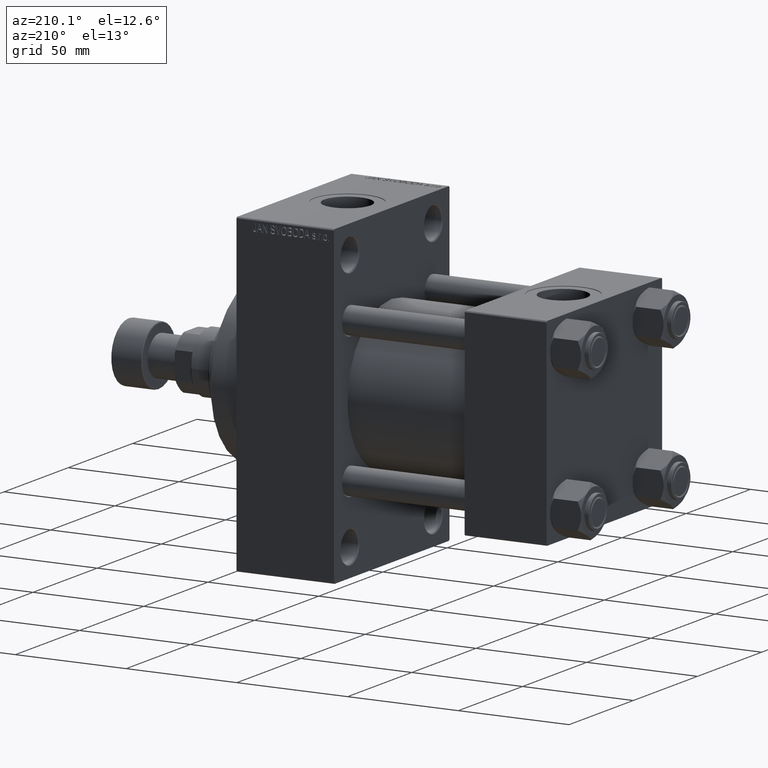
[diagram: clean part render]
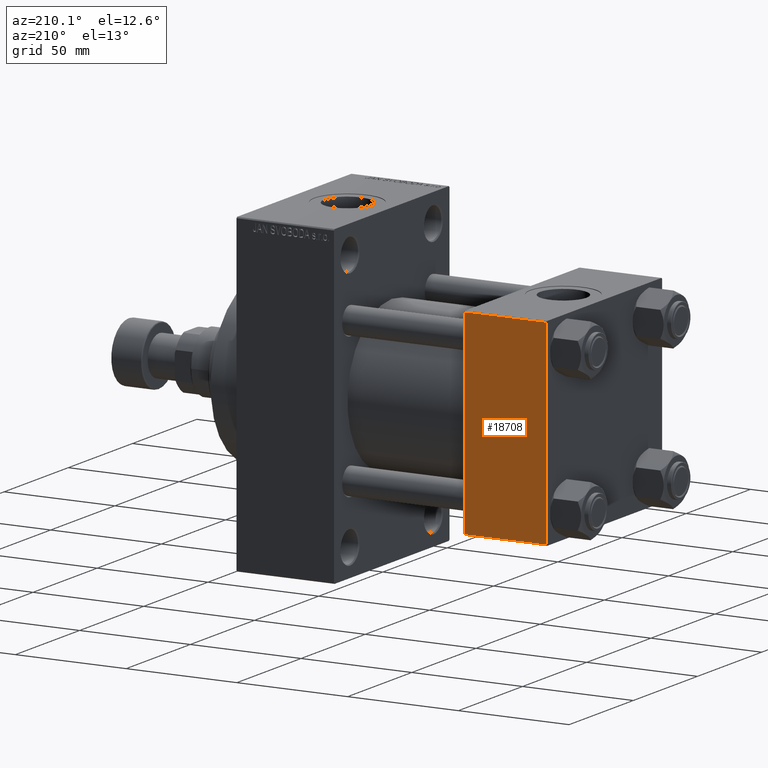
[diagram: same view with one face highlighted and labeled with its STEP entity id]
A machine part, auxiliary view. The second image highlights one B-rep face of the part: STEP entity #18708.
In plain terms, the highlighted planar face has unit normal (0, 1, 0).
Its self-contained STEP definition (entity closure, byte-faithful):
#611 = LINE ( 'NONE', #8302, #44023 ) ;
#662 = DIRECTION ( 'NONE',  ( -0.000000000000000000, 1.000000000000000000, 0.000000000000000000 ) ) ;
#1246 = CARTESIAN_POINT ( 'NONE',  ( 37.00000000000000000, 45.00000000000000000, -44.49999999999996447 ) ) ;
#2301 = CARTESIAN_POINT ( 'NONE',  ( 0.000000000000000000, 45.00000000000000000, -44.49999999999996447 ) ) ;
#4129 = ORIENTED_EDGE ( 'NONE', *, *, #23536, .T. ) ;
#5028 = VECTOR ( 'NONE', #43281, 1000.000000000000000 ) ;
#6236 = EDGE_CURVE ( 'NONE', #30316, #13992, #47371, .T. ) ;
#8302 = CARTESIAN_POINT ( 'NONE',  ( 37.00000000000000000, 45.00000000000000000, 44.49999999999999289 ) ) ;
#9556 = EDGE_CURVE ( 'NONE', #12150, #35496, #12733, .T. ) ;
#11334 = ORIENTED_EDGE ( 'NONE', *, *, #9556, .F. ) ;
#11511 = PLANE ( 'NONE',  #27009 ) ;
#11584 = CARTESIAN_POINT ( 'NONE',  ( 37.00000000000000000, 45.00000000000000000, 44.49999999999999289 ) ) ;
#12019 = DIRECTION ( 'NONE',  ( 0.000000000000000000, 0.000000000000000000, -1.000000000000000000 ) ) ;
#12150 = VERTEX_POINT ( 'NONE', #12479 ) ;
#12479 = CARTESIAN_POINT ( 'NONE',  ( 0.000000000000000000, 45.00000000000000000, 44.49999999999999289 ) ) ;
#12733 = LINE ( 'NONE', #42129, #35193 ) ;
#13992 = VERTEX_POINT ( 'NONE', #1246 ) ;
#18259 = FACE_OUTER_BOUND ( 'NONE', #20025, .T. ) ;
#18527 = LINE ( 'NONE', #25758, #23678 ) ;
#18708 = ADVANCED_FACE ( 'NONE', ( #18259 ), #11511, .T. ) ;
#20025 = EDGE_LOOP ( 'NONE', ( #24816, #4129, #11334, #28724 ) ) ;
#23536 = EDGE_CURVE ( 'NONE', #13992, #35496, #18527, .T. ) ;
#23678 = VECTOR ( 'NONE', #40711, 1000.000000000000000 ) ;
#24816 = ORIENTED_EDGE ( 'NONE', *, *, #6236, .T. ) ;
#25758 = CARTESIAN_POINT ( 'NONE',  ( 37.00000000000000000, 45.00000000000000000, -44.49999999999999289 ) ) ;
#27009 = AXIS2_PLACEMENT_3D ( 'NONE', #40682, #662, #37543 ) ;
#28724 = ORIENTED_EDGE ( 'NONE', *, *, #36415, .T. ) ;
#30316 = VERTEX_POINT ( 'NONE', #11584 ) ;
#35193 = VECTOR ( 'NONE', #12019, 1000.000000000000000 ) ;
#35496 = VERTEX_POINT ( 'NONE', #2301 ) ;
#36415 = EDGE_CURVE ( 'NONE', #12150, #30316, #611, .T. ) ;
#37543 = DIRECTION ( 'NONE',  ( 0.000000000000000000, -0.000000000000000000, 1.000000000000000000 ) ) ;
#37735 = DIRECTION ( 'NONE',  ( 1.000000000000000000, 0.000000000000000000, 0.000000000000000000 ) ) ;
#40682 = CARTESIAN_POINT ( 'NONE',  ( 37.00000000000000000, 45.00000000000000000, 45.00000000000000711 ) ) ;
#40711 = DIRECTION ( 'NONE',  ( -1.000000000000000000, 0.000000000000000000, 0.000000000000000000 ) ) ;
#42129 = CARTESIAN_POINT ( 'NONE',  ( 0.000000000000000000, 45.00000000000000000, 45.00000000000000711 ) ) ;
#43281 = DIRECTION ( 'NONE',  ( 0.000000000000000000, 0.000000000000000000, -1.000000000000000000 ) ) ;
#44023 = VECTOR ( 'NONE', #37735, 1000.000000000000000 ) ;
#46411 = CARTESIAN_POINT ( 'NONE',  ( 37.00000000000000000, 45.00000000000000000, 45.00000000000000711 ) ) ;
#47371 = LINE ( 'NONE', #46411, #5028 ) ;